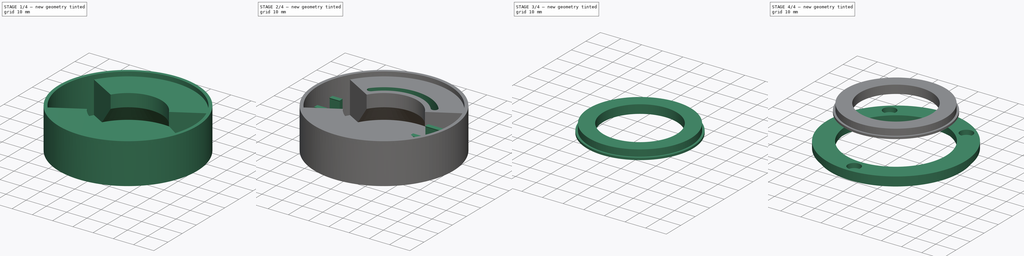
[diagram: build sequence overview — one tinted view per stage of 4, left to right]
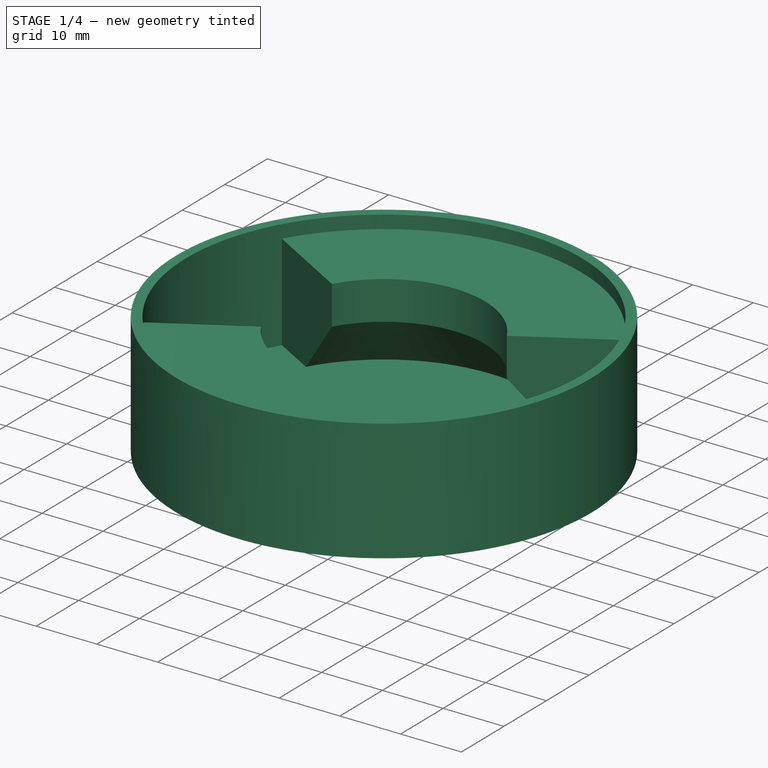
[diagram: stage 1 of 4 — iso view after this stage's code; geometry added in this stage tinted green]
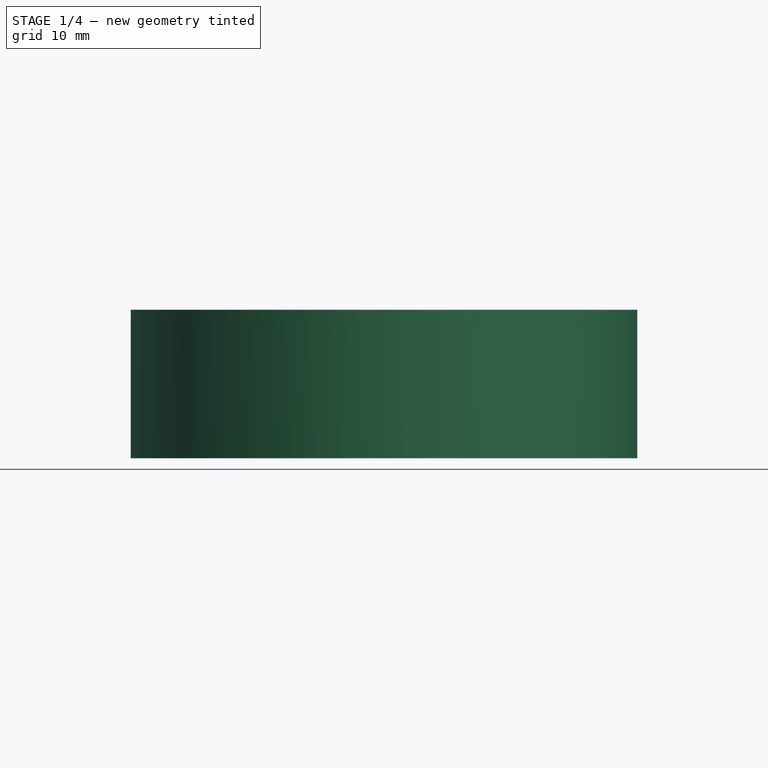
[diagram: stage 1 of 4 — front view after this stage's code; geometry added in this stage tinted green]
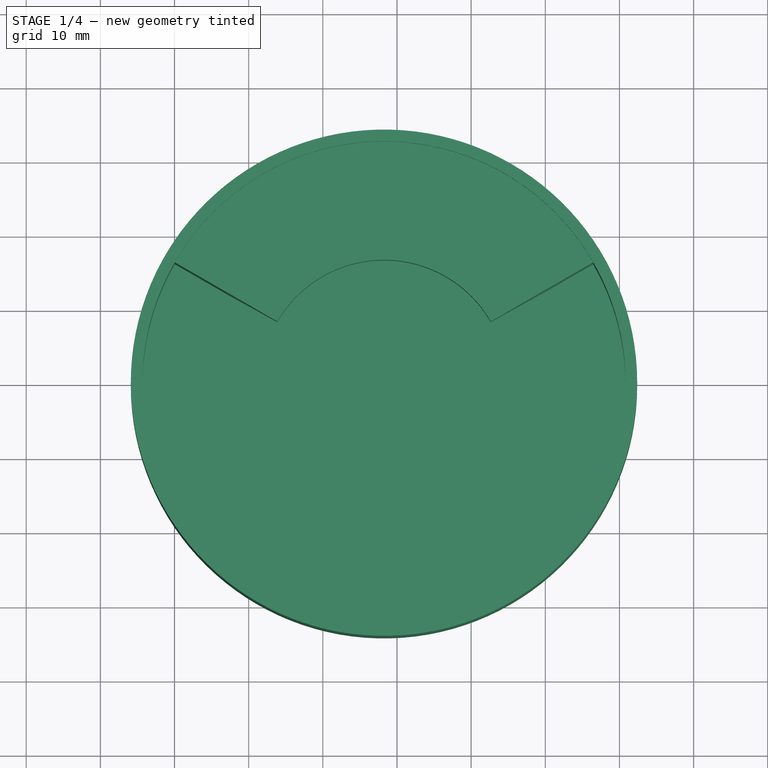
[diagram: stage 1 of 4 — top view after this stage's code; geometry added in this stage tinted green]
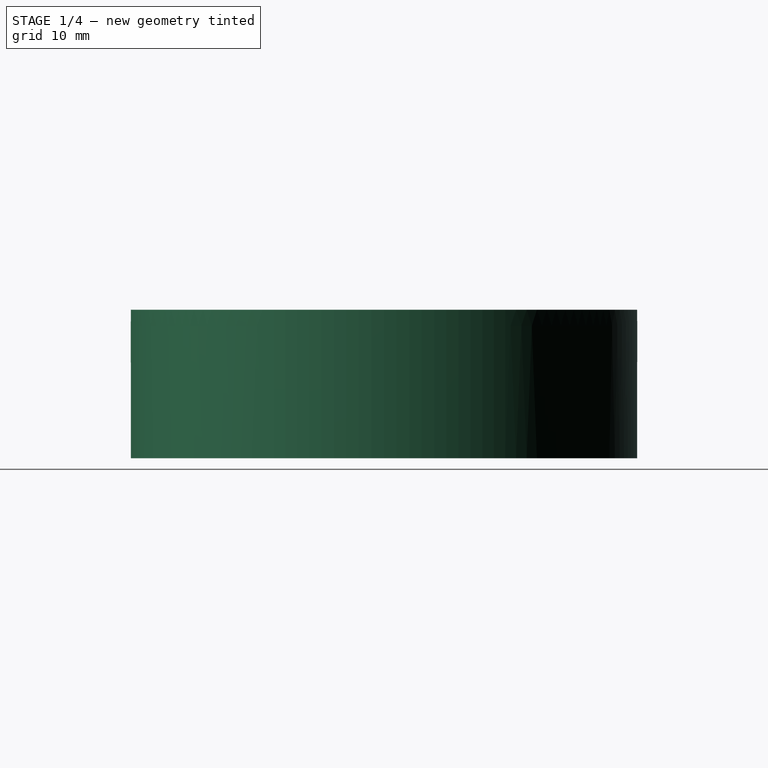
[diagram: stage 1 of 4 — right view after this stage's code; geometry added in this stage tinted green]
FCSTD DOCUMENT  (FreeCAD 1.0R39109 (Git))
Label: WWVBclockEnclosure
License: All rights reserved
LicenseURL: https://en.wikipedia.org/wiki/All_rights_reserved
objects: Sketcher::SketchObject×13, PartDesign::Pad×7, PartDesign::Pocket×5, PartDesign::SubShapeBinder×3, PartDesign::Body×3, PartDesign::Plane×2, PartDesign::Line×1, PartDesign::Point×1, PartDesign::Revolution×1, PartDesign::Mirrored×1, Spreadsheet::Sheet×1
note: 77 computed .brp shape members not serialized (recipe doc carries the construction recipe); baked Part::Feature solids carry a one-line shape summary decoded from their .brp
EXTERNAL_REF file=WwvbClockComponents.FCStd obj=Part

FEATURE [PartDesign::SubShapeBinder] Binder001  label="antenna"
  BindCopyOnChange = 0
  BindMode = 0
  ClaimChildren = false
  Context = -> Body [Binder001.]
  Fuse = false
  MakeFace = true
  OffsetFill = false
  OffsetIntersection = false
  OffsetJoinType = 0
  OffsetOpenResult = false
  PartialLoad = false
  Placement = pos=(0,2.54,-25.4) rot=(0,0,1;0rad)
  Refine = true
  Relative = true
  Support = -> [<external WwvbClockComponents.FCStd>#Part]
  _Version = 2
FEATURE [PartDesign::Plane] DatumPlane
  AttachmentOffset = pos=(0,0,-7) rot=(0,0,1;0rad)
  AttachmentSupport = -> [Binder001]
  Length = 81.935
  MapMode = 13
  Placement = pos=(-11.75,-1.5,-57.4394) rot=(0,0,1;0rad)
  ResizeMode = 0
  Width = 81.9482
FEATURE [Sketcher::SketchObject] Sketch
  ArcFitTolerance = 1e-06
  AttachmentSupport = -> [DatumPlane]
  ExternalGeometry = -> [Binder001]
  FullyConstrained = true
  MakeInternals = false
  MapMode = 5
  Placement = pos=(-11.75,-1.5,-57.4394) rot=(0,0,1;0rad)
  sketch-geometry (5):
    g0: Circle [constr] CenterX=10 CenterY=1.5 CenterZ=0 NormalX=0 NormalY=0 NormalZ=1 AngleXU=0 Radius=30.3356
    g1: Circle CenterX=10 CenterY=1.5 CenterZ=0 NormalX=0 NormalY=0 NormalZ=1 AngleXU=0 Radius=34.1456
    g2: LineSegment [constr] StartX=-20.3356 StartY=1.5 StartZ=0 EndX=-24.1456 EndY=1.5 EndZ=0
    g3: LineSegment [constr] StartX=40 StartY=6 StartZ=0 EndX=-20 EndY=-3 EndZ=0
    g4: LineSegment [constr] StartX=-20 StartY=6 StartZ=0 EndX=40 EndY=-3 EndZ=0
  constraints (13):
    c: PointOnObject(g2,g0)
    c: Coincident(g1,g0)
    c: PointOnObject(g2,g1)
    c: Distance(g2,g2) = 3.81
    c: Coincident(g3,g-4)
    c: Coincident(g3,g-3)
    c: Perpendicular(g1,g2)
    c: Coincident(g4,g-4)
    c: Coincident(g4,g-3)
    c: PointOnObject(g0,g4)
    c: PointOnObject(g0,g3)
    c: PointOnObject(g4,g0)
    c: Horizontal(g2)
FEATURE [PartDesign::Pad] Pad
  Direction = (0,0,1)
  Length = 2.032
  Length2 = 10
  Placement = pos=(-11.75,-1.5,-57.4394) rot=(0,0,1;0rad)
  Profile = -> Sketch
  ReferenceAxis = -> Sketch [N_Axis]
  Refine = true
  Reversed = true
  Suppressed = false
  Type = 0
FEATURE [Sketcher::SketchObject] Sketch001
  ArcFitTolerance = 1e-06
  AttachmentSupport = -> [Pad]
  ExternalGeometry = -> [Pad]
  FullyConstrained = true
  MakeInternals = false
  MapMode = 5
  Placement = pos=(-11.75,-1.5,-57.4394) rot=(0,0,1;0rad)
  sketch-geometry (3):
    g0: Circle CenterX=10 CenterY=1.5 CenterZ=0 NormalX=0 NormalY=0 NormalZ=1 AngleXU=0 Radius=34.1456
    g1: Circle CenterX=10 CenterY=1.5 CenterZ=0 NormalX=0 NormalY=0 NormalZ=1 AngleXU=0 Radius=32.5708
    g2: LineSegment [constr] StartX=10 StartY=34.0708 StartZ=0 EndX=10 EndY=35.6456 EndZ=0
  constraints (8):
    c: Coincident(g0,g-3)
    c: Equal(g0,g-3)
    c: Coincident(g1,g0)
    c: PointOnObject(g2,g1)
    c: PointOnObject(g2,g0)
    c: Perpendicular(g0,g2,g2) = 4.71239
    c: Distance(g2,g2) = 1.5748
    c: Vertical(g2)
FEATURE [PartDesign::Pad] Pad001
  BaseFeature = -> Pad
  Direction = (0,0,1)
  Length = 18
  Length2 = 10
  Offset = -2.54
  Placement = pos=(-11.75,-1.5,-57.4394) rot=(0,0,1;0rad)
  Profile = -> Sketch001
  ReferenceAxis = -> Sketch001 [N_Axis]
  Refine = true
  Suppressed = false
  Type = 0
FEATURE [PartDesign::Line] DatumLine  label="axis of ant enclosure"
  AttacherType = Attacher::AttachEngineLine
  AttachmentSupport = -> [Pad001]
  Length = 20
  MapMode = 42
  Placement = pos=(-1.75,1.29e-14,-57.4394) rot=(0,0,1;0rad)
  ResizeMode = 0
FEATURE [PartDesign::Point] DatumPoint
  AttacherType = Attacher::AttachEnginePoint
  AttachmentSupport = -> [Pad001]
  MapMode = 37
  Placement = pos=(-1.75,1.15e-14,-59.4714) rot=(0,0,1;0rad)
FEATURE [PartDesign::Plane] DatumPlane006
  AttachmentSupport = -> [YZ_Plane,DatumPoint]
  Length = 83.4816
  MapMode = 53
  Placement = pos=(-1.75,2e-16,-2e-16) rot=(0.57735,0.57735,0.57735;2.0944rad)
  ResizeMode = 0
  Width = 99.6618
FEATURE [Sketcher::SketchObject] Sketch013
  ArcFitTolerance = 1e-06
  AttachmentSupport = -> [DatumPlane006]
  ExternalGeometry = -> [Pad001]
  FullyConstrained = true
  MakeInternals = false
  MapMode = 5
  Placement = pos=(-1.75,2e-16,-2e-16) rot=(0.57735,0.57735,0.57735;2.0944rad)
  sketch-geometry (5):
    g0: LineSegment StartX=16.6196 StartY=-41.5984 StartZ=0 EndX=34.1456 EndY=-41.5984 EndZ=0
    g1: LineSegment StartX=34.1456 StartY=-41.5984 StartZ=0 EndX=32.5708 EndY=-57.4394 EndZ=0
    g2: LineSegment StartX=16.6196 StartY=-41.5984 StartZ=0 EndX=16.6196 EndY=-47.9484 EndZ=0
    g3: LineSegment StartX=16.6196 StartY=-47.9484 StartZ=0 EndX=24.9508 EndY=-57.4394 EndZ=0
    g4: LineSegment StartX=24.9508 StartY=-57.4394 StartZ=0 EndX=32.5708 EndY=-57.4394 EndZ=0
  constraints (14):
    c: Horizontal(g0)
    c: Coincident(g1,g0)
    c: Vertical(g-4,g0)
    c: DistanceY(g0,g-5) = 2.159
    c: DistanceX(g0,g0) = 17.526
    c: Coincident(g2,g0)
    c: Vertical(g2)
    c: Coincident(g3,g2)
    c: PointOnObject(g3,g-3)
    c: Coincident(g4,g3)
    c: Coincident(g4,g1)
    c: DistanceY(g2,g2) = 6.35
    c: DistanceX(g3,g1) = 7.62
    c: Coincident(g1,g-3)
FEATURE [PartDesign::Revolution] Revolution
  Angle = 120
  Angle2 = 60
  Axis = (0,0,1)
  Base = (-1.75,1.14e-14,-57.4394)
  BaseFeature = -> Pad001
  Midplane = true
  Placement = pos=(-11.75,-1.5,-57.4394) rot=(0,0,1;0rad)
  Profile = -> Sketch013
  ReferenceAxis = -> DatumLine
  Refine = true
  Reversed = true
  Suppressed = false
  Type = 0
FEATURE [PartDesign::Mirrored] Mirrored
  BaseFeature = -> Revolution
  MirrorPlane = -> Sketch013 [V_Axis]
  Originals = -> [Revolution]
  Placement = pos=(-11.75,-1.5,-57.4394) rot=(0,0,1;0rad)
  Refine = true
  Suppressed = false
  TransformMode = 0
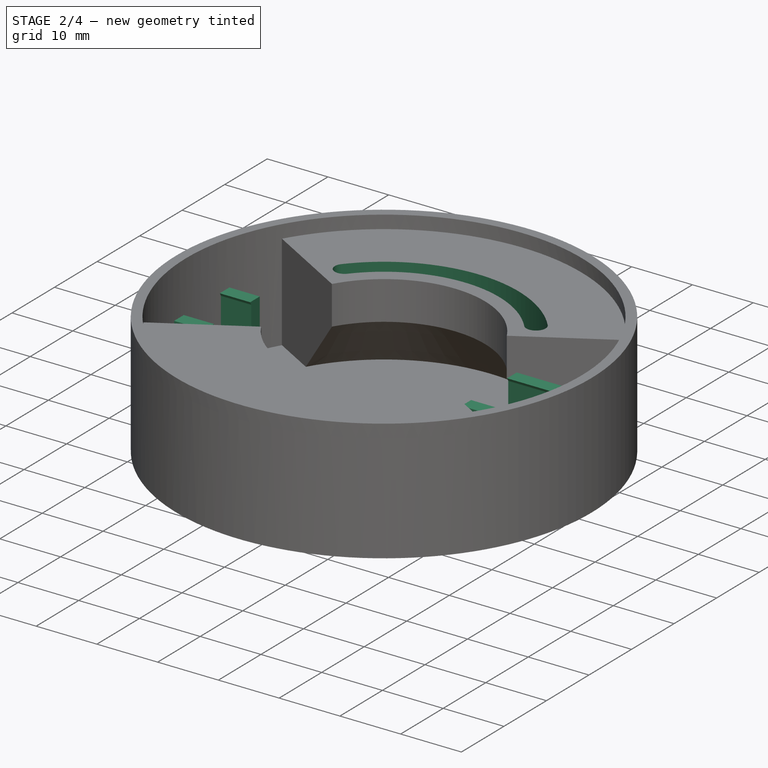
[diagram: stage 2 of 4 — iso view after this stage's code; geometry added in this stage tinted green]
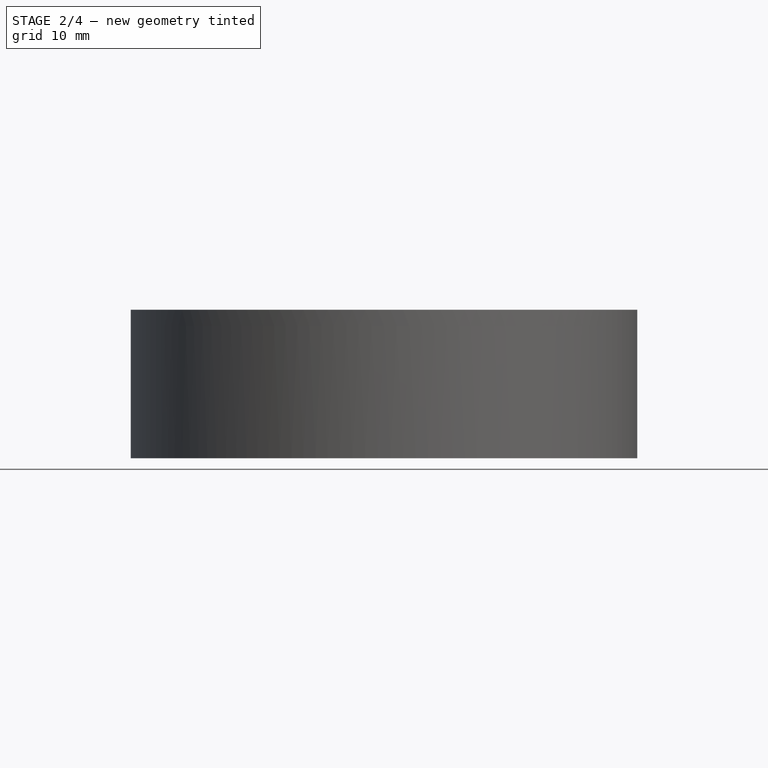
[diagram: stage 2 of 4 — front view after this stage's code; geometry added in this stage tinted green]
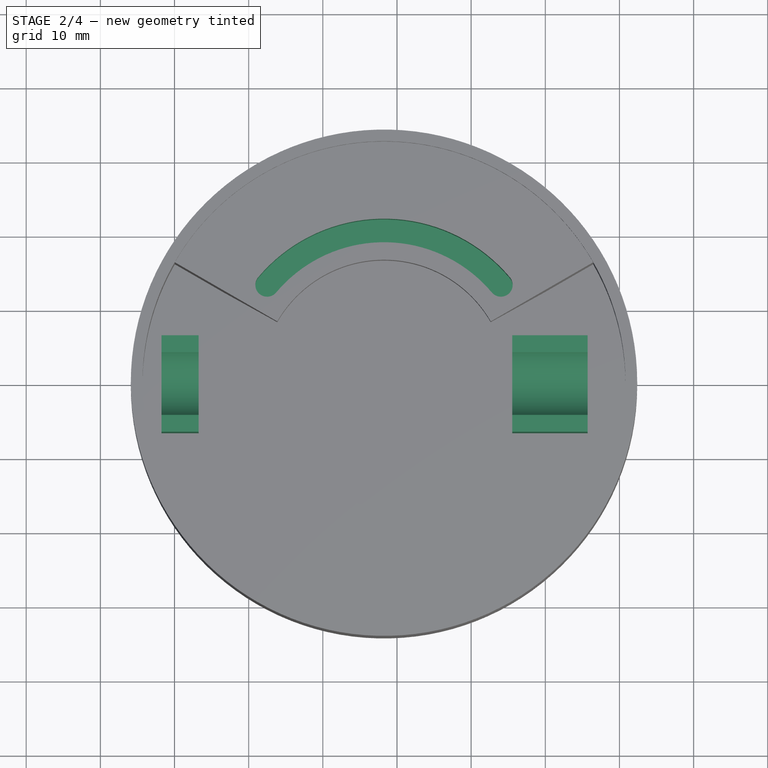
[diagram: stage 2 of 4 — top view after this stage's code; geometry added in this stage tinted green]
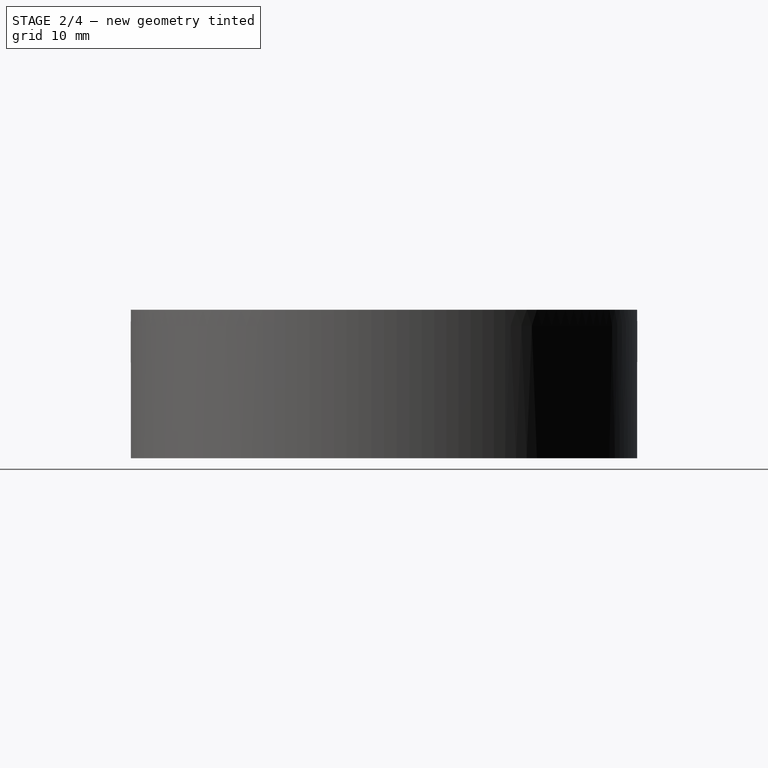
[diagram: stage 2 of 4 — right view after this stage's code; geometry added in this stage tinted green]
FEATURE [Sketcher::SketchObject] Sketch014
  ArcFitTolerance = 1e-06
  AttachmentSupport = -> [Mirrored]
  ExternalGeometry = -> [Binder001]
  FullyConstrained = true
  MakeInternals = false
  MapMode = 5
  Placement = pos=(-11.75,-1.5,-57.4394) rot=(0,0,1;0rad)
  sketch-geometry (10):
    g0: LineSegment StartX=27.3 StartY=8 StartZ=0 EndX=27.3 EndY=-5 EndZ=0
    g1: LineSegment StartX=27.3 StartY=-5 StartZ=0 EndX=37.46 EndY=-5 EndZ=0
    g2: LineSegment StartX=37.46 StartY=8 StartZ=0 EndX=27.3 EndY=8 EndZ=0
    g3: LineSegment [constr] StartX=37.46 StartY=8 StartZ=0 EndX=37.46 EndY=6 EndZ=0
    g4: LineSegment [constr] StartX=37.46 StartY=-5 StartZ=0 EndX=37.46 EndY=-3 EndZ=0
    g5: LineSegment StartX=37.46 StartY=8 StartZ=0 EndX=37.46 EndY=-5 EndZ=0
    g6: LineSegment StartX=-20 StartY=8 StartZ=0 EndX=-20 EndY=-5 EndZ=0
    g7: LineSegment StartX=-20 StartY=-5 StartZ=0 EndX=-15 EndY=-5 EndZ=0
    g8: LineSegment StartX=-15 StartY=-5 StartZ=0 EndX=-15 EndY=8 EndZ=0
    g9: LineSegment StartX=-15 StartY=8 StartZ=0 EndX=-20 EndY=8 EndZ=0
  constraints (30):
    c: Coincident(g0,g1)
    c: Coincident(g2,g0)
    c: Vertical(g0)
    c: Horizontal(g1)
    c: Horizontal(g2)
    c: DistanceX(g2,g2) = 10.16
    c: PointOnObject(g3,g-3)
    c: Coincident(g4,g1)
    c: PointOnObject(g4,g-4)
    c: Vertical(g4)
    c: Vertical(g3)
    c: Equal(g3,g4)
    c: DistanceX(g2,g-3) = 2.54
    c: Coincident(g5,g2)
    c: Coincident(g5,g1)
    c: Vertical(g5)
    c: DistanceY(g3,g3) = 2
    c: Coincident(g3,g2)
    c: Coincident(g6,g7)
    c: Coincident(g7,g8)
    c: Coincident(g8,g9)
    c: Coincident(g9,g6)
    c: Vertical(g6)
    c: Vertical(g8)
    c: Horizontal(g7)
    c: Horizontal(g9)
    c: DistanceX(g9,g9) = 5
    c: Horizontal(g8,g0)
    c: Horizontal(g7,g0)
    c: Vertical(g-5,g6)
FEATURE [PartDesign::Pad] Pad007
  BaseFeature = -> Mirrored
  Direction = (0,0,1)
  Length = 10
  Length2 = 10
  Offset = 4
  Placement = pos=(-11.75,-1.5,-57.4394) rot=(0,0,1;0rad)
  Profile = -> Sketch014
  ReferenceAxis = -> Sketch014 [N_Axis]
  Refine = true
  Suppressed = false
  Type = 3
  UpToFace = -> Mirrored [Face10]
FEATURE [Sketcher::SketchObject] Sketch015
  ArcFitTolerance = 1e-06
  AttachmentSupport = -> [Pad007]
  ExternalGeometry = -> [Binder001]
  FullyConstrained = true
  MakeInternals = false
  MapMode = 5
  Placement = pos=(25.71,-1.5,-57.4394) rot=(0.57735,0.57735,0.57735;2.0944rad)
  sketch-geometry (4):
    g0: ArcOfCircle CenterX=1.5 CenterY=9.17945 CenterZ=0 NormalX=0 NormalY=0 NormalZ=1 AngleXU=0 Radius=5 StartAngle=0.451027 EndAngle=2.69057
    g1: ArcOfCircle CenterX=1.5 CenterY=9.17945 CenterZ=0 NormalX=0 NormalY=0 NormalZ=1 AngleXU=0 Radius=5 StartAngle=3.59262 EndAngle=5.83216
    g2: LineSegment StartX=-3 StartY=11.3589 StartZ=0 EndX=-3 EndY=7 EndZ=0
    g3: LineSegment StartX=6 StartY=11.3589 StartZ=0 EndX=6 EndY=7 EndZ=0
  constraints (10):
    c: Coincident(g0,g-5)
    c: Coincident(g0,g-4)
    c: PointOnObject(g0,g-6)
    c: Coincident(g1,g0)
    c: Coincident(g1,g-5)
    c: Coincident(g2,g0)
    c: Coincident(g2,g1)
    c: Vertical(g2)
    c: Coincident(g3,g0)
    c: Coincident(g3,g1)
FEATURE [PartDesign::Pocket] Pocket003  label="antenna cut in brackets"
  BaseFeature = -> Pad007
  Direction = (-1,0,0)
  Length = 0
  Length2 = 5
  Placement = pos=(-11.75,-1.5,-57.4394) rot=(0,0,1;0rad)
  Profile = -> Sketch015
  ReferenceAxis = -> Sketch015 [N_Axis]
  Refine = true
  Suppressed = false
  Type = 3
  UpToFace = -> Pad007 [Face13]
FEATURE [Sketcher::SketchObject] Sketch016
  ArcFitTolerance = 1e-06
  AttachmentSupport = -> [Pocket003]
  ExternalGeometry = -> [Pocket003]
  FullyConstrained = false
  MakeInternals = false
  MapMode = 5
  Placement = pos=(-11.75,-1.5,-41.5984) rot=(0,0,1;0rad)
  expr: Constraints[25] = Spreadsheet.Base_Ant_Ring_Rotation_Stop_Radius
  expr: Constraints[8] = Spreadsheet.Base_Num4_clearance_hole
  sketch-geometry (11):
    g0: ArcOfCircle CenterX=10 CenterY=1.5 CenterZ=0 NormalX=0 NormalY=0 NormalZ=1 AngleXU=0 Radius=22.1615 StartAngle=0.698132 EndAngle=2.44346
    g1: ArcOfCircle CenterX=10 CenterY=1.5 CenterZ=0 NormalX=0 NormalY=0 NormalZ=1 AngleXU=0 Radius=18.9865 StartAngle=0.698132 EndAngle=2.44346
    g2: LineSegment [constr] StartX=24.5445 StartY=13.7043 StartZ=0 EndX=26.9767 EndY=15.7451 EndZ=0
    g3: LineSegment [constr] StartX=-4.5445 StartY=13.7043 StartZ=0 EndX=-6.97669 EndY=15.7451 EndZ=0
    g4: LineSegment [constr] StartX=24.5445 StartY=13.7043 StartZ=0 EndX=22.0258 EndY=12.2537 EndZ=0
    g5: LineSegment [constr] StartX=10 StartY=1.5 StartZ=0 EndX=10 EndY=23.6615 EndZ=0
    g6: LineSegment [constr] StartX=10 StartY=23.6615 StartZ=0 EndX=-6.97669 EndY=15.7451 EndZ=0
    g7: LineSegment [constr] StartX=10 StartY=23.6615 StartZ=0 EndX=26.9767 EndY=15.7451 EndZ=0
    g8: ArcOfCircle CenterX=-5.7606 CenterY=14.7247 CenterZ=0 NormalX=0 NormalY=0 NormalZ=1 AngleXU=0 Radius=1.5875 StartAngle=2.44346 EndAngle=5.58505
    g9: ArcOfCircle CenterX=25.7606 CenterY=14.7247 CenterZ=0 NormalX=0 NormalY=0 NormalZ=1 AngleXU=0 Radius=1.5875 StartAngle=3.83972 EndAngle=6.98132
    g10: LineSegment [constr] StartX=10 StartY=1.5 StartZ=0 EndX=25.7606 EndY=14.7247 EndZ=0
  constraints (27):
    c: Coincident(g1,g0)
    c: Coincident(g2,g1)
    c: Coincident(g2,g0)
    c: Perpendicular(g1,g2)
    c: Coincident(g3,g1)
    c: Coincident(g3,g0)
    c: Perpendicular(g0,g3)
    c: Coincident(g4,g1)
    c: Distance(g1,g0) = 3.175
    c: Coincident(g5,g0)
    c: PointOnObject(g5,g0)
    c: Vertical(g5)
    c: Coincident(g6,g5)
    c: Coincident(g6,g0)
    c: Coincident(g7,g5)
    c: Coincident(g7,g0)
    c: Equal(g6,g7)
    c: Angle(g2,g3) = 1.74533
    c: Coincident(g8,g1)
    c: Coincident(g9,g1)
    c: Coincident(g9,g0)
    c: Tangent(g8,g0) = -1.5708
    c: Equal(g8,g9)
    c: Coincident(g10,g0)
    c: Symmetric(g0,g1,g10)
    c: Distance(g10) = 20.574
    c: Coincident(g-3,g0)
FEATURE [PartDesign::Pocket] Pocket004
  BaseFeature = -> Pocket003
  Direction = (0,0,-1)
  Length = 6.35
  Length2 = 5
  Placement = pos=(-11.75,-1.5,-57.4394) rot=(0,0,1;0rad)
  Profile = -> Sketch016
  ReferenceAxis = -> Sketch016 [N_Axis]
  Refine = true
  Suppressed = false
  Type = 0
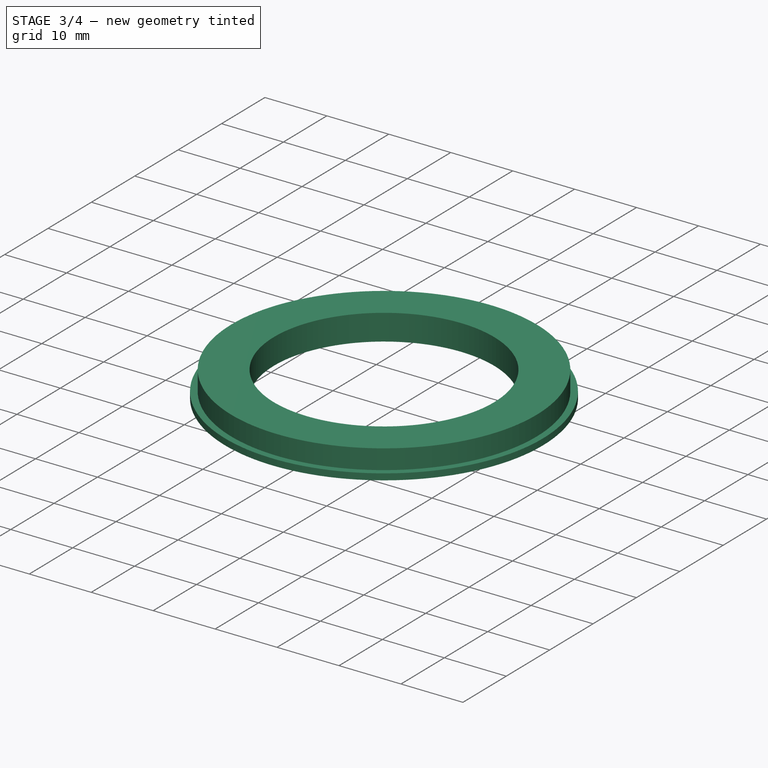
[diagram: stage 3 of 4 — iso view after this stage's code; geometry added in this stage tinted green]
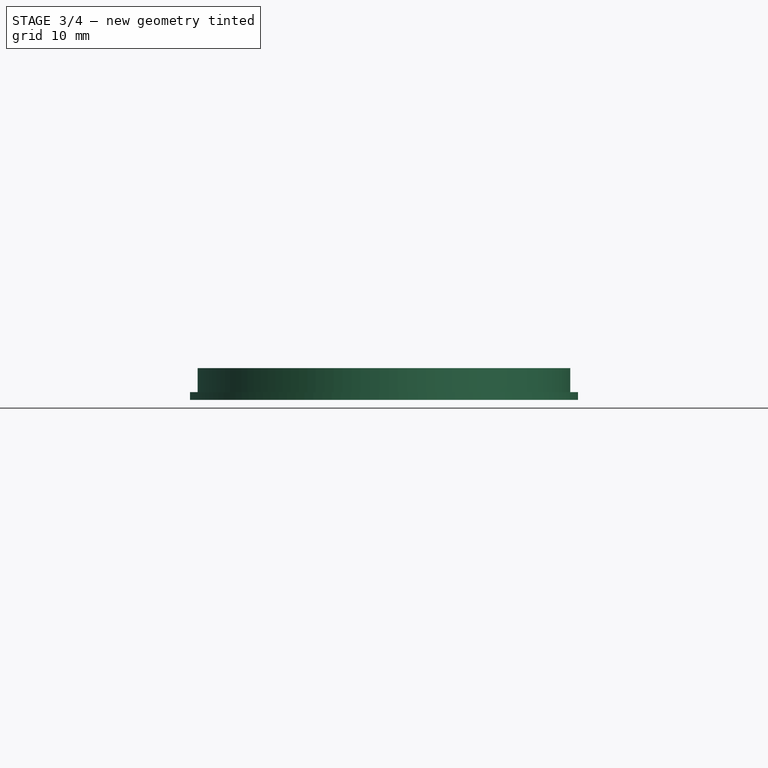
[diagram: stage 3 of 4 — front view after this stage's code; geometry added in this stage tinted green]
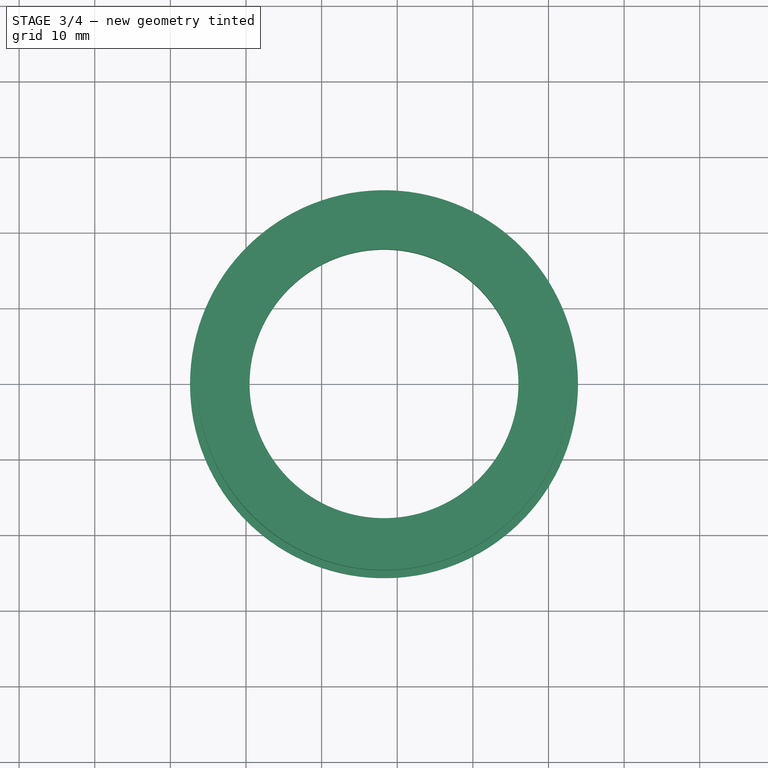
[diagram: stage 3 of 4 — top view after this stage's code; geometry added in this stage tinted green]
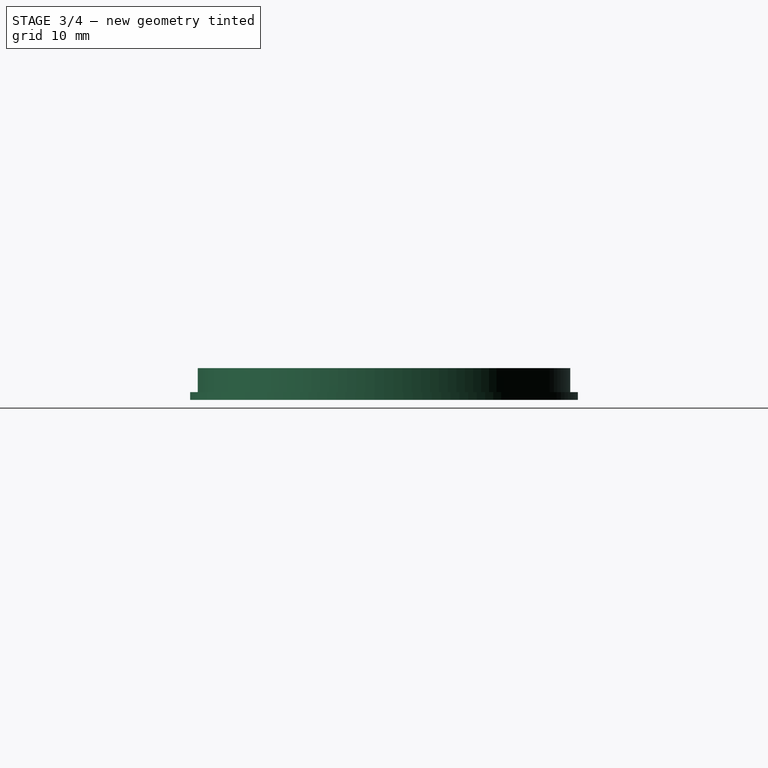
[diagram: stage 3 of 4 — right view after this stage's code; geometry added in this stage tinted green]
FEATURE [Sketcher::SketchObject] Sketch017
  ArcFitTolerance = 1e-06
  AttachmentSupport = -> [Pocket004]
  ExternalGeometry = -> [Pocket004]
  FullyConstrained = true
  MakeInternals = false
  MapMode = 5
  Placement = pos=(-11.75,-1.5,-41.5984) rot=(0,0,1;0rad)
  expr: Constraints[12] = Spreadsheet.Base_Num4_self_thread_hole
  sketch-geometry (8):
    g0: Circle [constr] CenterX=10 CenterY=1.5 CenterZ=0 NormalX=0 NormalY=0 NormalZ=1 AngleXU=0 Radius=29.6456
    g1: LineSegment [constr] StartX=10 StartY=31.1456 StartZ=0 EndX=10 EndY=35.6456 EndZ=0
    g2: LineSegment [constr] StartX=10 StartY=1.5 StartZ=0 EndX=10 EndY=31.1456 EndZ=0
    g3: Circle CenterX=-9.05584 CenterY=24.2099 CenterZ=0 NormalX=0 NormalY=0 NormalZ=1 AngleXU=0 Radius=1.27
    g4: Circle CenterX=29.0558 CenterY=24.2099 CenterZ=0 NormalX=0 NormalY=0 NormalZ=1 AngleXU=0 Radius=1.27
    g5: Circle CenterX=10 CenterY=-28.1456 CenterZ=0 NormalX=0 NormalY=0 NormalZ=1 AngleXU=0 Radius=1.27
    g6: LineSegment [constr] StartX=10 StartY=1.5 StartZ=0 EndX=-9.05584 EndY=24.2099 EndZ=0
    g7: LineSegment [constr] StartX=-9.05584 StartY=24.2099 StartZ=0 EndX=29.0558 EndY=24.2099 EndZ=0
  constraints (21):
    c: Coincident(g0,g-3)
    c: PointOnObject(g1,g0)
    c: PointOnObject(g1,g-3)
    c: Vertical(g1)
    c: DistanceY(g1,g1) = 4.5
    c: PointOnObject(g3,g0)
    c: PointOnObject(g4,g0)
    c: PointOnObject(g5,g0)
    c: Coincident(g2,g0)
    c: PointOnObject(g2,g0)
    c: Equal(g5,g3)
    c: Equal(g3,g4)
    c: Diameter(g3) = 2.54
    c: Tangent(g2,g1)
    c: Coincident(g6,g0)
    c: Coincident(g6,g3)
    c: Angle(g2,g6) = 0.698132
    c: Coincident(g7,g3)
    c: Coincident(g7,g4)
    c: Horizontal(g7)
    c: Vertical(g5,g1)
FEATURE [PartDesign::Pocket] Pocket005  label="self thread mount holes"
  BaseFeature = -> Pocket004
  Direction = (0,0,-1)
  Length = 12.7
  Length2 = 5
  Placement = pos=(-11.75,-1.5,-57.4394) rot=(0,0,1;0rad)
  Profile = -> Sketch017
  ReferenceAxis = -> Sketch017 [N_Axis]
  Refine = true
  Suppressed = false
  Type = 0
FEATURE [PartDesign::Body] Body003  label="Retainer ring"
  AllowCompound = false
  Group = -> [Binder011,Sketch018,Pad008,Sketch019,Pad009,Sketch020,Pocket006,Sketch021,Pocket007]
  Origin = -> Origin003
  Tip = -> Pocket007
FEATURE [PartDesign::SubShapeBinder] Binder
  BindCopyOnChange = 0
  BindMode = 0
  ClaimChildren = false
  Context = -> Body004 [Binder.]
  Fuse = false
  MakeFace = true
  OffsetFill = false
  OffsetIntersection = false
  OffsetJoinType = 0
  OffsetOpenResult = false
  PartialLoad = false
  Refine = true
  Relative = true
  Support = -> [Body]
  _Version = 2
FEATURE [Sketcher::SketchObject] Sketch022
  ArcFitTolerance = 1e-06
  ExternalGeometry = -> [Binder]
  FullyConstrained = false
  MakeInternals = false
  MapMode = 5
  Placement = pos=(0,0,-19.2548) rot=(1,0,0;3.14159rad)
  expr: Constraints[0] = Spreadsheet.Base_Ant_Ring_IDiameter - 10 thou
  sketch-geometry (2):
    g0: Circle CenterX=-1.75 CenterY=0 CenterZ=0 NormalX=0 NormalY=0 NormalZ=1 AngleXU=0 Radius=24.638
    g1: Circle CenterX=-1.75 CenterY=0 CenterZ=0 NormalX=0 NormalY=0 NormalZ=1 AngleXU=0 Radius=17.78
  constraints (3):
    c: Diameter(g0) = 49.276
    c: Coincident(g1,g0)
    c: Coincident(g-3,g0)
FEATURE [PartDesign::Pad] Pad010
  Direction = (0,0,-1)
  Length = 4.191
  Length2 = 10
  Placement = pos=(0,0,-19.2548) rot=(1,0,0;3.14159rad)
  Profile = -> Sketch022
  ReferenceAxis = -> Sketch022 [N_Axis]
  Refine = true
  Suppressed = false
  Type = 0
  expr: Length = Spreadsheet.Base_Ant_Ring_Retainer_Height + 40 thou
FEATURE [Sketcher::SketchObject] Sketch023
  ArcFitTolerance = 1e-06
  AttachmentSupport = -> [Pad010]
  ExternalGeometry = -> [Pad010]
  FullyConstrained = true
  MakeInternals = false
  MapMode = 5
  Placement = pos=(0,0,-23.4458) rot=(1,0,0;3.14159rad)
  sketch-geometry (3):
    g0: Circle CenterX=-1.75 CenterY=0 CenterZ=0 NormalX=0 NormalY=0 NormalZ=1 AngleXU=0 Radius=25.654
    g1: LineSegment [constr] StartX=-26.388 StartY=0 StartZ=0 EndX=-27.404 EndY=0 EndZ=0
    g2: Circle CenterX=-1.75 CenterY=0 CenterZ=0 NormalX=0 NormalY=0 NormalZ=1 AngleXU=0 Radius=17.78
  constraints (8):
    c: PointOnObject(g1,g-3)
    c: PointOnObject(g1,g0)
    c: Perpendicular(g-3,g1)
    c: DistanceX(g1,g1) = 1.016
    c: Horizontal(g1)
    c: Coincident(g0,g-3)
    c: Coincident(g2,g0)
    c: Equal(g-4,g2)
FEATURE [PartDesign::Pad] Pad011
  BaseFeature = -> Pad010
  Direction = (0,0,-1)
  Length = 1.016
  Length2 = 10
  Placement = pos=(0,0,-19.2548) rot=(1,0,0;3.14159rad)
  Profile = -> Sketch023
  ReferenceAxis = -> Sketch023 [N_Axis]
  Refine = true
  Reversed = true
  Suppressed = false
  Type = 0
FEATURE [PartDesign::Body] Body004  label="Interface"
  AllowCompound = false
  Group = -> [Sketch022,Pad010,Sketch023,Pad011,Binder]
  Origin = -> Origin004
  Tip = -> Pad011
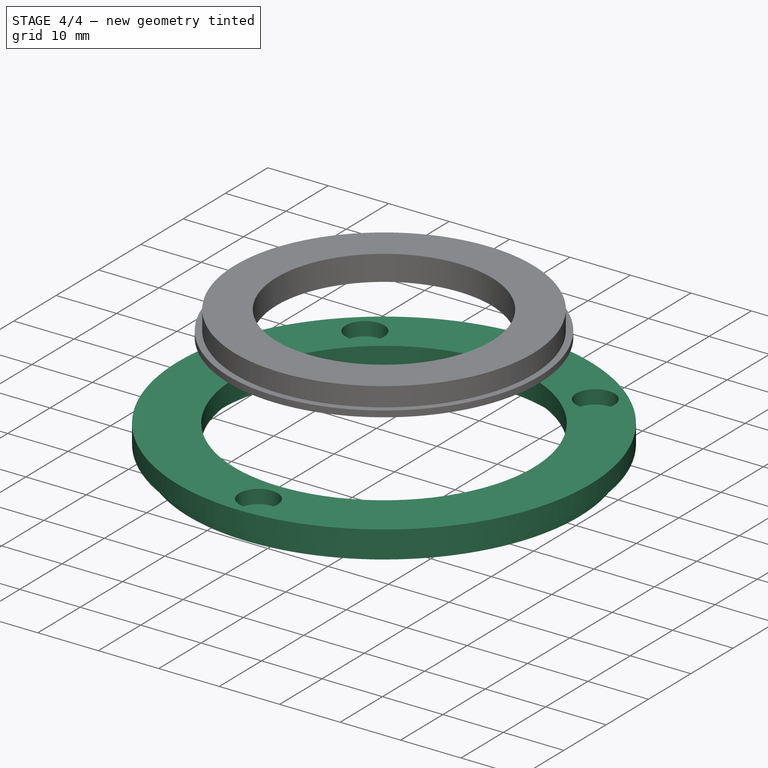
[diagram: stage 4 of 4 — iso view after this stage's code; geometry added in this stage tinted green]
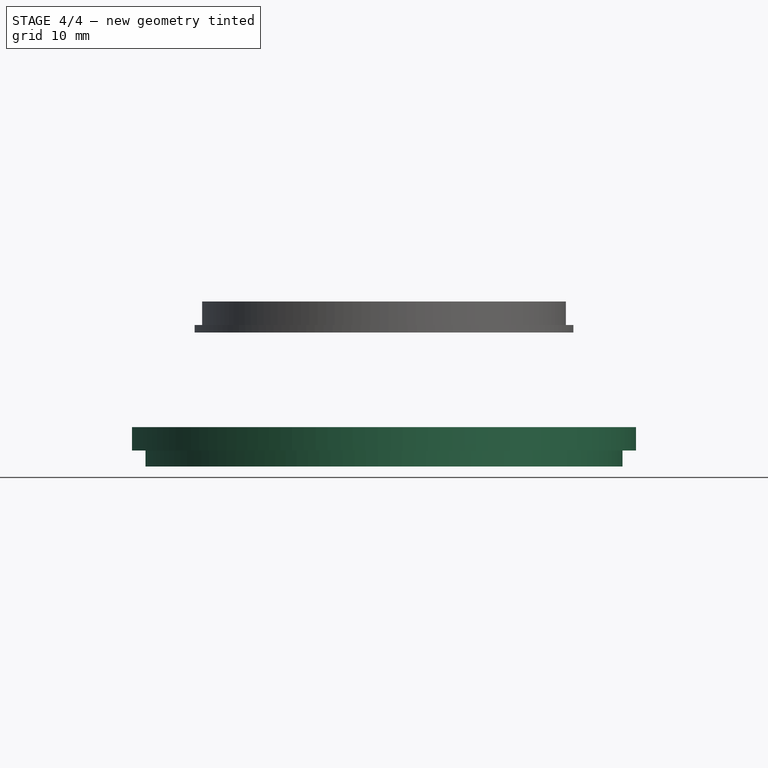
[diagram: stage 4 of 4 — front view after this stage's code; geometry added in this stage tinted green]
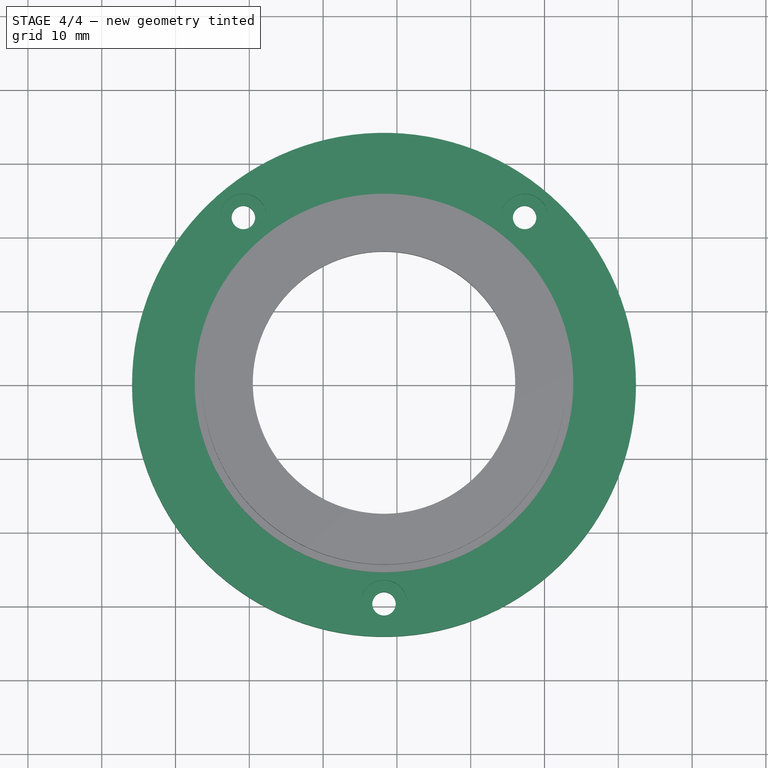
[diagram: stage 4 of 4 — top view after this stage's code; geometry added in this stage tinted green]
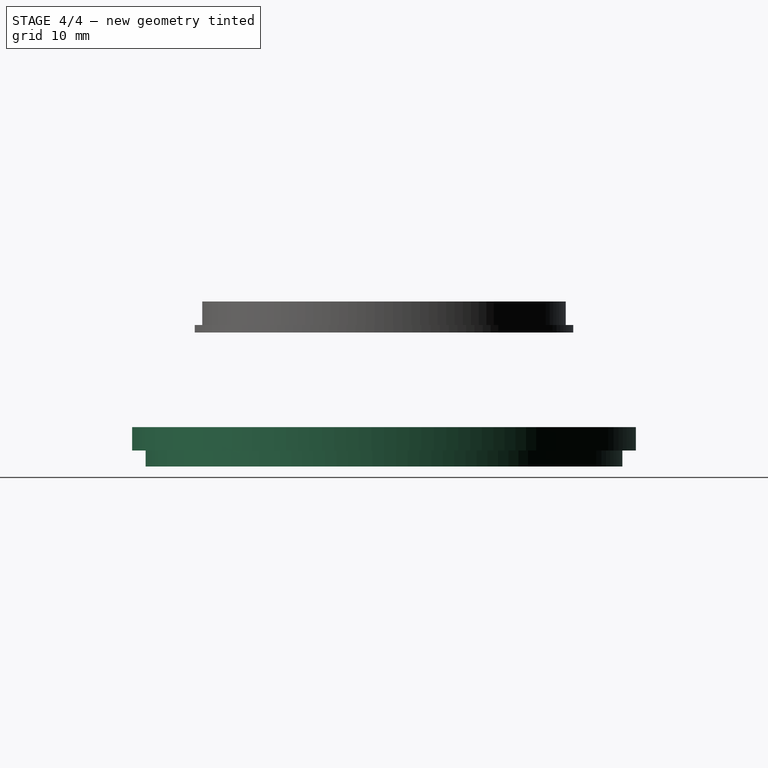
[diagram: stage 4 of 4 — right view after this stage's code; geometry added in this stage tinted green]
FEATURE [PartDesign::Body] Body  label="AntennaEnclosure"
  AllowCompound = false
  Group = -> [Binder001,DatumPlane,Sketch,Pad,Sketch001,Pad001,DatumLine,DatumPoint,DatumPlane006,Sketch013,Revolution,Mirrored,Sketch014,Pad007,Sketch015,Pocket003,Sketch016,Pocket004,Sketch017,Pocket005]
  Origin = -> Origin
  Tip = -> Pocket005
FEATURE [Spreadsheet::Sheet] Spreadsheet
  Base_Ant_Ring_IDiameter = 49.53
  Base_Ant_Ring_Retainer_Height = 3.175
  Base_Ant_Ring_Rotation_Stop_Radius = 20.574
  Base_LCD_Clearance_Y_tilt_proportion = 0.65
  Base_Num4_clearance_hole = 3.175
  Base_Num4_self_thread_hole = 2.54
FEATURE [PartDesign::SubShapeBinder] Binder011
  BindCopyOnChange = 0
  BindMode = 0
  ClaimChildren = false
  Context = -> Body003 [Binder011.]
  Fuse = false
  MakeFace = true
  OffsetFill = false
  OffsetIntersection = false
  OffsetJoinType = 0
  OffsetOpenResult = false
  PartialLoad = false
  Refine = true
  Relative = true
  Support = -> [Body]
  _Version = 2
FEATURE [Sketcher::SketchObject] Sketch018
  ArcFitTolerance = 1e-06
  AttachmentSupport = -> [Binder011]
  ExternalGeometry = -> [Binder011]
  FullyConstrained = true
  MakeInternals = false
  MapMode = 5
  Placement = pos=(0,0,-41.5984) rot=(0,0,1;0rad)
  sketch-geometry (4):
    g0: Circle CenterX=-1.75 CenterY=1.11e-14 CenterZ=0 NormalX=0 NormalY=0 NormalZ=1 AngleXU=0 Radius=32.3168
    g1: LineSegment [constr] StartX=-34.0668 StartY=1.31e-14 StartZ=0 EndX=-34.3208 EndY=1.31e-14 EndZ=0
    g2: Circle CenterX=-1.75 CenterY=1.11e-14 CenterZ=0 NormalX=0 NormalY=0 NormalZ=1 AngleXU=0 Radius=27.2368
    g3: LineSegment [constr] StartX=-34.0668 StartY=1.31e-14 StartZ=0 EndX=-28.9868 EndY=1.28e-14 EndZ=0
  constraints (11):
    c: Coincident(g0,g-3)
    c: PointOnObject(g1,g0)
    c: PointOnObject(g1,g-3)
    c: Horizontal(g1)
    c: DistanceX(g1,g1) = 0.254
    c: Perpendicular(g1,g0,g1) = 1.5708
    c: Coincident(g2,g0)
    c: Coincident(g3,g1)
    c: PointOnObject(g3,g2)
    c: Perpendicular(g2,g3)
    c: DistanceX(g3,g3) = 5.08
FEATURE [PartDesign::Pad] Pad008
  Direction = (0,0,1)
  Length = 10
  Length2 = 10
  Profile = -> Sketch018
  ReferenceAxis = -> Sketch018 [N_Axis]
  Refine = true
  Suppressed = false
  Type = 3
  UpToFace = -> Binder011 [Face14]
FEATURE [Sketcher::SketchObject] Sketch019
  ArcFitTolerance = 1e-06
  AttachmentSupport = -> [Pad008]
  ExternalGeometry = -> [Binder011]
  FullyConstrained = true
  MakeInternals = false
  MapMode = 5
  Placement = pos=(0,0,-39.4394) rot=(0,0,1;0rad)
  expr: Constraints[3] = Spreadsheet.Base_Ant_Ring_IDiameter
  sketch-geometry (2):
    g0: Circle CenterX=-1.75 CenterY=1.11e-14 CenterZ=0 NormalX=0 NormalY=0 NormalZ=1 AngleXU=0 Radius=34.1456
    g1: Circle CenterX=-1.75 CenterY=1.11e-14 CenterZ=0 NormalX=0 NormalY=0 NormalZ=1 AngleXU=0 Radius=24.765
  constraints (4):
    c: Coincident(g0,g-3)
    c: Equal(g0,g-3)
    c: Coincident(g1,g0)
    c: Diameter(g1) = 49.53
FEATURE [PartDesign::Pad] Pad009
  BaseFeature = -> Pad008
  Direction = (0,0,1)
  Length = 3.175
  Length2 = 10
  Profile = -> Sketch019
  ReferenceAxis = -> Sketch019 [N_Axis]
  Refine = true
  Suppressed = false
  Type = 0
  expr: Length = Spreadsheet.Base_Ant_Ring_Retainer_Height
FEATURE [Sketcher::SketchObject] Sketch020
  ArcFitTolerance = 1e-06
  AttachmentSupport = -> [Pad009]
  ExternalGeometry = -> [Binder011]
  FullyConstrained = true
  MakeInternals = false
  MapMode = 5
  Placement = pos=(0,0,-36.2644) rot=(0,0,1;0rad)
  expr: Constraints[5] = Spreadsheet.Base_Num4_clearance_hole
  sketch-geometry (3):
    g0: Circle CenterX=-1.75 CenterY=-29.6456 CenterZ=0 NormalX=0 NormalY=0 NormalZ=1 AngleXU=0 Radius=1.5875
    g1: Circle CenterX=17.3058 CenterY=22.7099 CenterZ=0 NormalX=0 NormalY=0 NormalZ=1 AngleXU=0 Radius=1.5875
    g2: Circle CenterX=-20.8058 CenterY=22.7099 CenterZ=0 NormalX=0 NormalY=0 NormalZ=1 AngleXU=0 Radius=1.5875
  constraints (6):
    c: Coincident(g0,g-5)
    c: Coincident(g1,g-4)
    c: Coincident(g2,g-3)
    c: Equal(g2,g0)
    c: Equal(g0,g1)
    c: Diameter(g2) = 3.175
FEATURE [PartDesign::Pocket] Pocket006  label="mounting holes"
  BaseFeature = -> Pad009
  Direction = (0,0,-1)
  Length = 5
  Length2 = 5
  Profile = -> Sketch020
  ReferenceAxis = -> Sketch020 [N_Axis]
  Refine = true
  Suppressed = false
  Type = 1
FEATURE [Sketcher::SketchObject] Sketch021
  ArcFitTolerance = 1e-06
  AttachmentSupport = -> [Pocket006]
  ExternalGeometry = -> [Pocket006]
  FullyConstrained = true
  MakeInternals = false
  MapMode = 5
  Placement = pos=(0,0,-36.2644) rot=(0,0,1;0rad)
  sketch-geometry (3):
    g0: Circle CenterX=-20.8058 CenterY=22.7099 CenterZ=0 NormalX=0 NormalY=0 NormalZ=1 AngleXU=0 Radius=3.175
    g1: Circle CenterX=17.3058 CenterY=22.7099 CenterZ=0 NormalX=0 NormalY=0 NormalZ=1 AngleXU=0 Radius=3.175
    g2: Circle CenterX=-1.75 CenterY=-29.6456 CenterZ=0 NormalX=0 NormalY=0 NormalZ=1 AngleXU=0 Radius=3.175
  constraints (6):
    c: Coincident(g0,g-3)
    c: Coincident(g1,g-5)
    c: Coincident(g2,g-6)
    c: Equal(g2,g1)
    c: Equal(g2,g0)
    c: Diameter(g2) = 6.35
FEATURE [PartDesign::Pocket] Pocket007  label="counter sink"
  BaseFeature = -> Pocket006
  Direction = (0,0,-1)
  Length = 2.286
  Length2 = 5
  Profile = -> Sketch021
  ReferenceAxis = -> Sketch021 [N_Axis]
  Refine = true
  Suppressed = false
  Type = 0
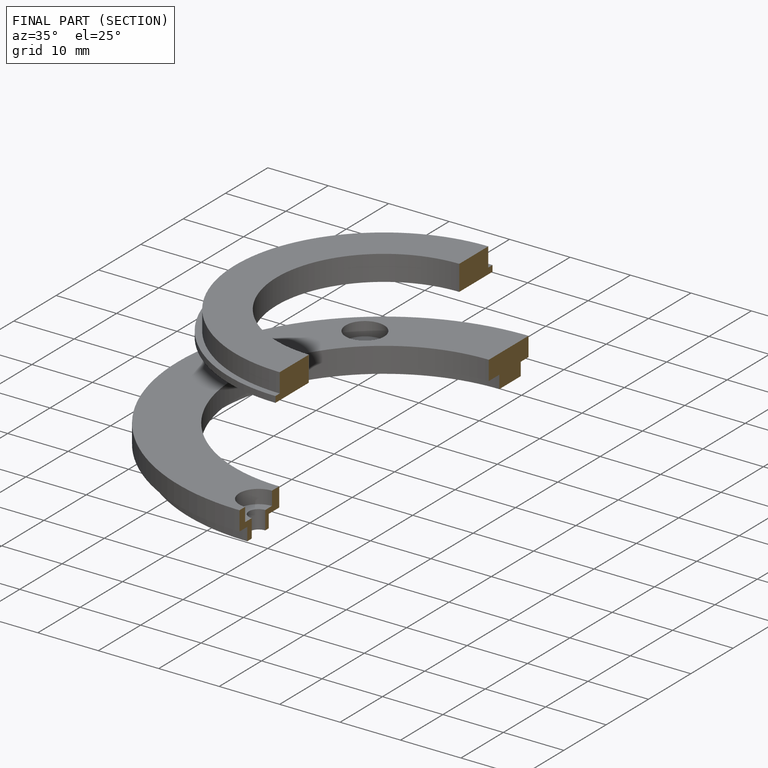
[diagram: finished part — half-section view (interior)]
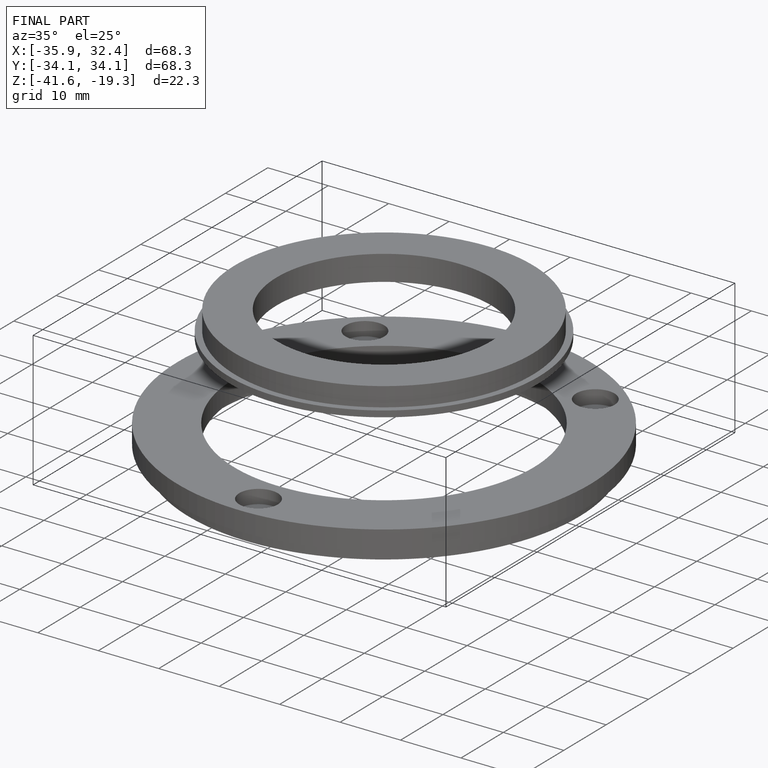
[diagram: finished part — iso view with bounding-box wireframe]
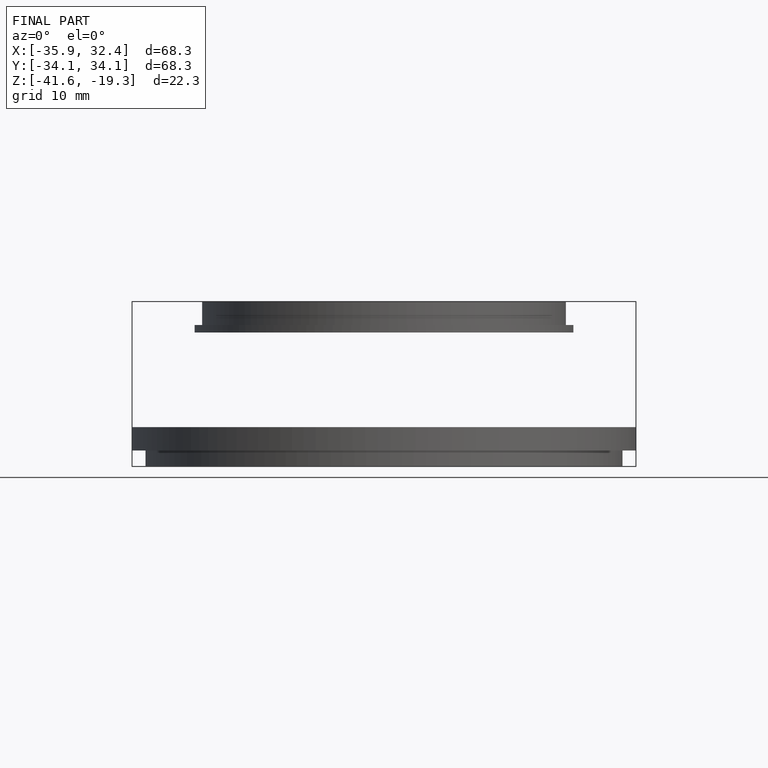
[diagram: finished part — front view with bounding-box wireframe]
